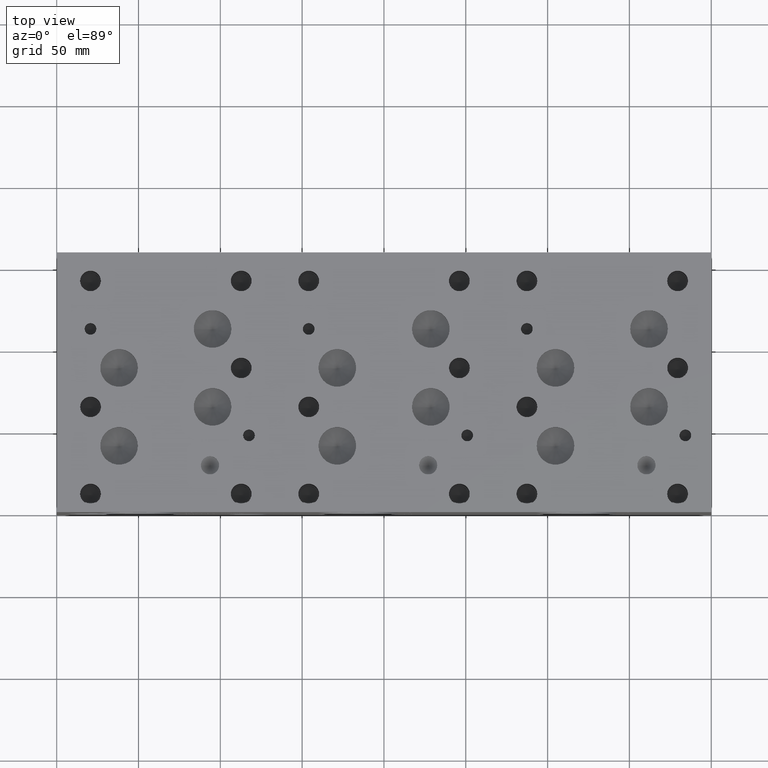
[diagram: clean part render]
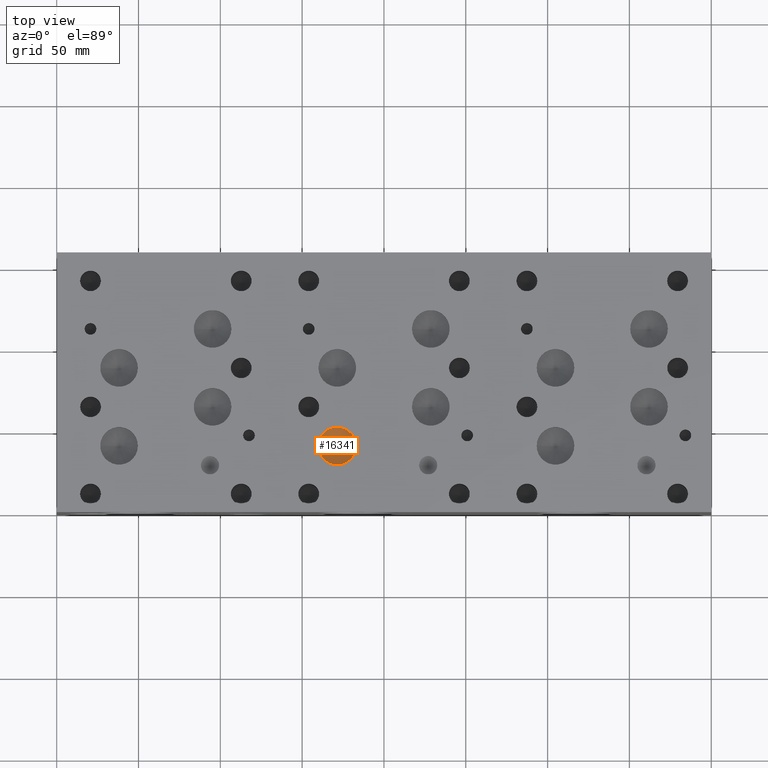
[diagram: same view with one face highlighted and labeled with its STEP entity id]
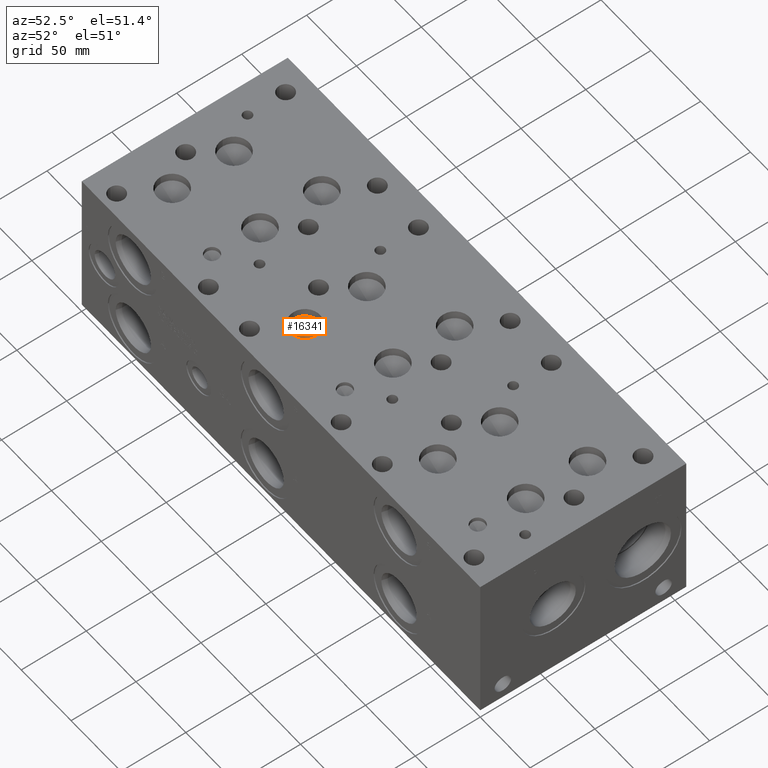
[diagram: same view with one face highlighted and labeled with its STEP entity id]
A machine part, top view. The second image highlights one B-rep face of the part: STEP entity #16341.
A second angle (auxiliary view) of the same face is appended — the face is thin or edge-on in the first view.
In plain terms, the highlighted conical surface has half-angle 60 deg.
Its self-contained STEP definition (entity closure, byte-faithful):
#95=CONICAL_SURFACE('',#17356,5.7531,1.0471975511966);
#601=CIRCLE('',#17357,11.5062);
#602=CIRCLE('',#17358,11.5062);
#2296=FACE_OUTER_BOUND('',#3258,.T.);
#3258=EDGE_LOOP('',(#14095,#14096,#14097,#14098));
#4716=LINE('',#28180,#6094);
#6094=VECTOR('',#20734,5.7531);
#7565=VERTEX_POINT('',#28176);
#7566=VERTEX_POINT('',#28177);
#7567=VERTEX_POINT('',#28179);
#9806=EDGE_CURVE('',#7565,#7566,#601,.T.);
#9807=EDGE_CURVE('',#7566,#7567,#4716,.T.);
#9808=EDGE_CURVE('',#7566,#7565,#602,.T.);
#14095=ORIENTED_EDGE('',*,*,#9806,.T.);
#14096=ORIENTED_EDGE('',*,*,#9807,.T.);
#14097=ORIENTED_EDGE('',*,*,#9807,.F.);
#14098=ORIENTED_EDGE('',*,*,#9808,.T.);
#16341=ADVANCED_FACE('',(#2296),#95,.F.);
#17356=AXIS2_PLACEMENT_3D('',#28175,#20730,#20731);
#17357=AXIS2_PLACEMENT_3D('',#28178,#20732,#20733);
#17358=AXIS2_PLACEMENT_3D('',#28181,#20735,#20736);
#20730=DIRECTION('center_axis',(0.,0.,1.));
#20731=DIRECTION('ref_axis',(1.,0.,0.));
#20732=DIRECTION('center_axis',(0.,0.,1.));
#20733=DIRECTION('ref_axis',(1.,0.,0.));
#20734=DIRECTION('',(0.866025403784439,1.06057523872491E-16,-0.5));
#20735=DIRECTION('center_axis',(0.,0.,1.));
#20736=DIRECTION('ref_axis',(1.,0.,0.));
#28175=CARTESIAN_POINT('Origin',(171.45,40.4622,110.685336166325));
#28176=CARTESIAN_POINT('',(182.9562,40.4622,114.00689));
#28177=CARTESIAN_POINT('',(159.9438,40.4622,114.00689));
#28178=CARTESIAN_POINT('Origin',(171.45,40.4622,114.00689));
#28179=CARTESIAN_POINT('',(171.45,40.4622,107.36378233265));
#28180=CARTESIAN_POINT('',(165.6969,40.4622,110.685336166325));
#28181=CARTESIAN_POINT('Origin',(171.45,40.4622,114.00689));